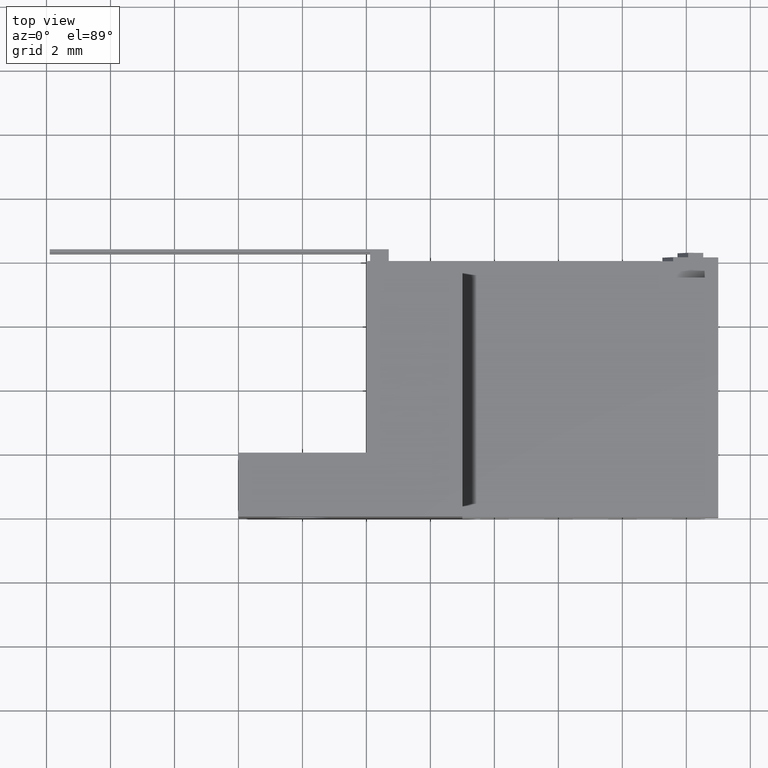
[diagram: clean part render]
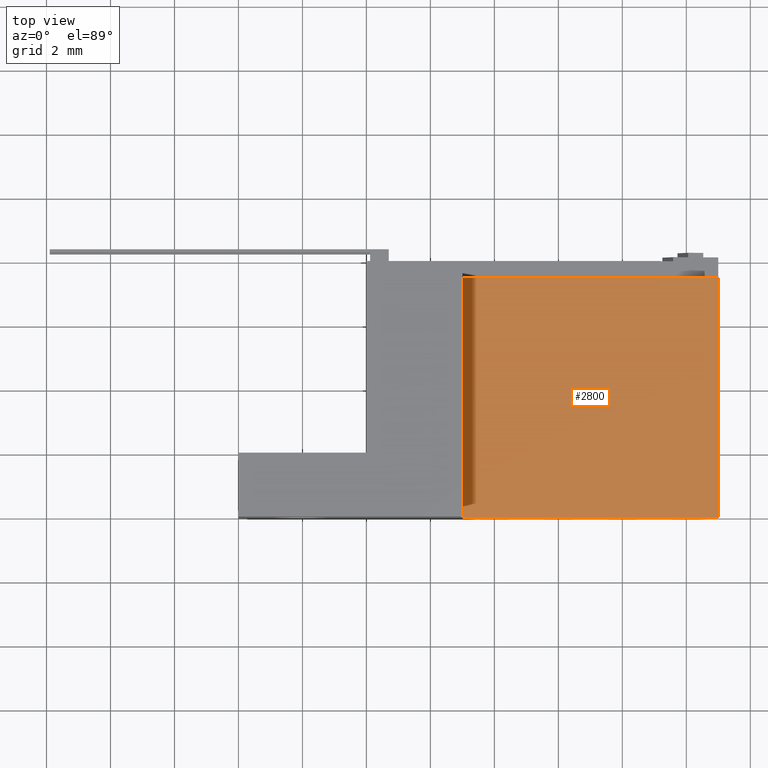
[diagram: same view with one face highlighted and labeled with its STEP entity id]
A machine part, top view. The second image highlights one B-rep face of the part: STEP entity #2800.
In plain terms, the highlighted planar face has unit normal (0, 0, -1).
Its self-contained STEP definition (entity closure, byte-faithful):
#129 = DIRECTION ( 'NONE',  ( -1.000000000000000000, -1.577021341797097600E-016, 0.0000000000000000000 ) ) ;
#130 = VECTOR ( 'NONE', #129, 1000.000000000000000 ) ;
#131 = CARTESIAN_POINT ( 'NONE',  ( 14.99999999999999800, 7.500000000000000000, 2.700000000000000200 ) ) ;
#132 = LINE ( 'NONE', #131, #130 ) ;
#242 = VECTOR ( 'NONE', #255, 1000.000000000000000 ) ;
#243 = CARTESIAN_POINT ( 'NONE',  ( 6.999999999999999100, -1.734723475976807100E-015, 2.700000000000000200 ) ) ;
#244 = LINE ( 'NONE', #243, #242 ) ;
#245 = FACE_OUTER_BOUND ( 'NONE', #2801, .T. ) ;
#247 = AXIS2_PLACEMENT_3D ( 'NONE', #252, #251, #250 ) ;
#250 = DIRECTION ( 'NONE',  ( -1.000000000000000000, 0.0000000000000000000, -0.0000000000000000000 ) ) ;
#251 = DIRECTION ( 'NONE',  ( 0.0000000000000000000, 0.0000000000000000000, -1.000000000000000000 ) ) ;
#252 = CARTESIAN_POINT ( 'NONE',  ( 15.00000000000000000, 0.0000000000000000000, 2.700000000000000200 ) ) ;
#254 = PLANE ( 'NONE',  #247 ) ;
#255 = DIRECTION ( 'NONE',  ( -1.156482317317872000E-016, 1.000000000000000000, -0.0000000000000000000 ) ) ;
#304 = CARTESIAN_POINT ( 'NONE',  ( 6.999999999999997300, 7.500000000000000000, 2.700000000000000200 ) ) ;
#389 = LINE ( 'NONE', #394, #393 ) ;
#392 = DIRECTION ( 'NONE',  ( -1.000000000000000000, -2.168404344971008900E-016, 0.0000000000000000000 ) ) ;
#393 = VECTOR ( 'NONE', #392, 1000.000000000000000 ) ;
#394 = CARTESIAN_POINT ( 'NONE',  ( 15.00000000000000000, 0.0000000000000000000, 2.700000000000000200 ) ) ;
#396 = CARTESIAN_POINT ( 'NONE',  ( 6.999999999999999100, -1.734723475976807100E-015, 2.700000000000000200 ) ) ;
#399 = CARTESIAN_POINT ( 'NONE',  ( 15.00000000000000000, 0.0000000000000000000, 2.700000000000000200 ) ) ;
#2499 = VERTEX_POINT ( 'NONE', #3230 ) ;
#2501 = EDGE_CURVE ( 'NONE', #2619, #2499, #3241, .T. ) ;
#2569 = EDGE_CURVE ( 'NONE', #2499, #2590, #132, .T. ) ;
#2590 = VERTEX_POINT ( 'NONE', #304 ) ;
#2610 = EDGE_CURVE ( 'NONE', #2619, #2621, #389, .T. ) ;
#2619 = VERTEX_POINT ( 'NONE', #399 ) ;
#2621 = VERTEX_POINT ( 'NONE', #396 ) ;
#2797 = ORIENTED_EDGE ( 'NONE', *, *, #2501, .T. ) ;
#2799 = EDGE_CURVE ( 'NONE', #2621, #2590, #244, .T. ) ;
#2800 = ADVANCED_FACE ( 'NONE', ( #245 ), #254, .F. ) ;
#2801 = EDGE_LOOP ( 'NONE', ( #2797, #2802, #2803, #2804 ) ) ;
#2802 = ORIENTED_EDGE ( 'NONE', *, *, #2569, .T. ) ;
#2803 = ORIENTED_EDGE ( 'NONE', *, *, #2799, .F. ) ;
#2804 = ORIENTED_EDGE ( 'NONE', *, *, #2610, .F. ) ;
#3230 = CARTESIAN_POINT ( 'NONE',  ( 14.99999999999999800, 7.500000000000000000, 2.700000000000000600 ) ) ;
#3239 = DIRECTION ( 'NONE',  ( -1.156482317317872000E-016, 1.000000000000000000, -0.0000000000000000000 ) ) ;
#3240 = VECTOR ( 'NONE', #3239, 1000.000000000000000 ) ;
#3241 = LINE ( 'NONE', #3242, #3240 ) ;
#3242 = CARTESIAN_POINT ( 'NONE',  ( 15.00000000000000000, 0.0000000000000000000, 2.700000000000000200 ) ) ;